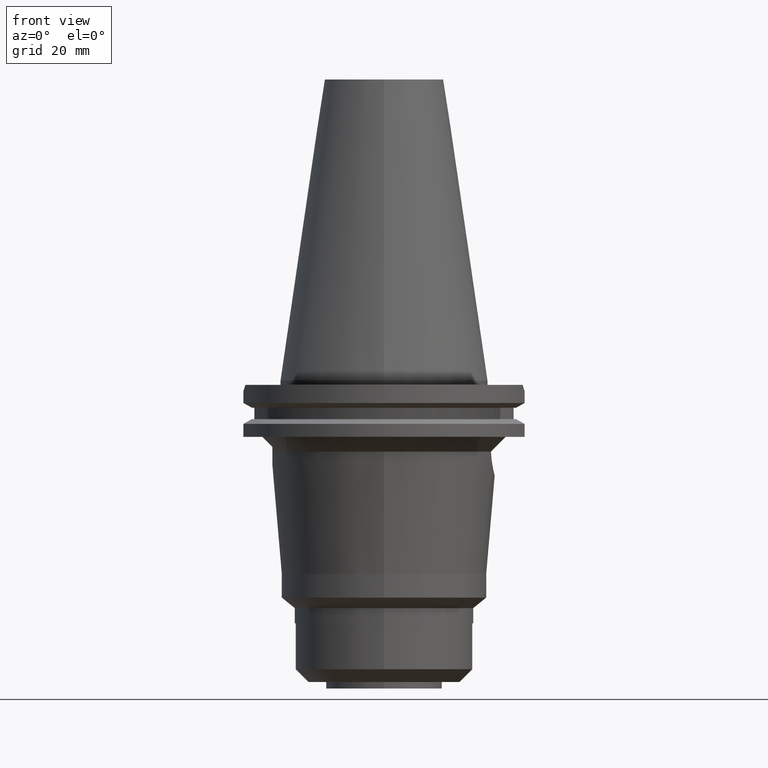
[diagram: clean part render]
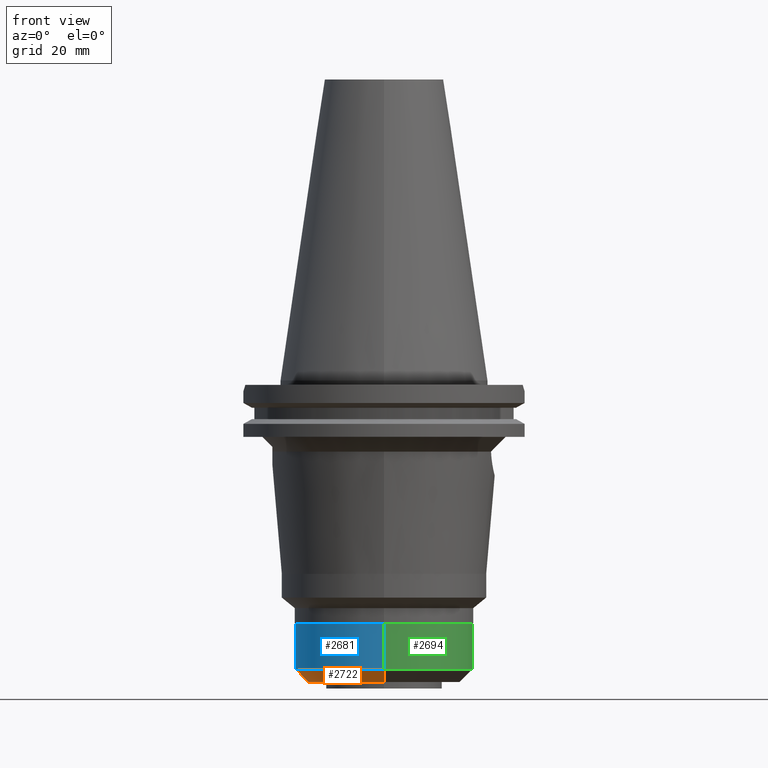
[diagram: same view with three faces highlighted in distinct colors, each labeled with its STEP entity id]
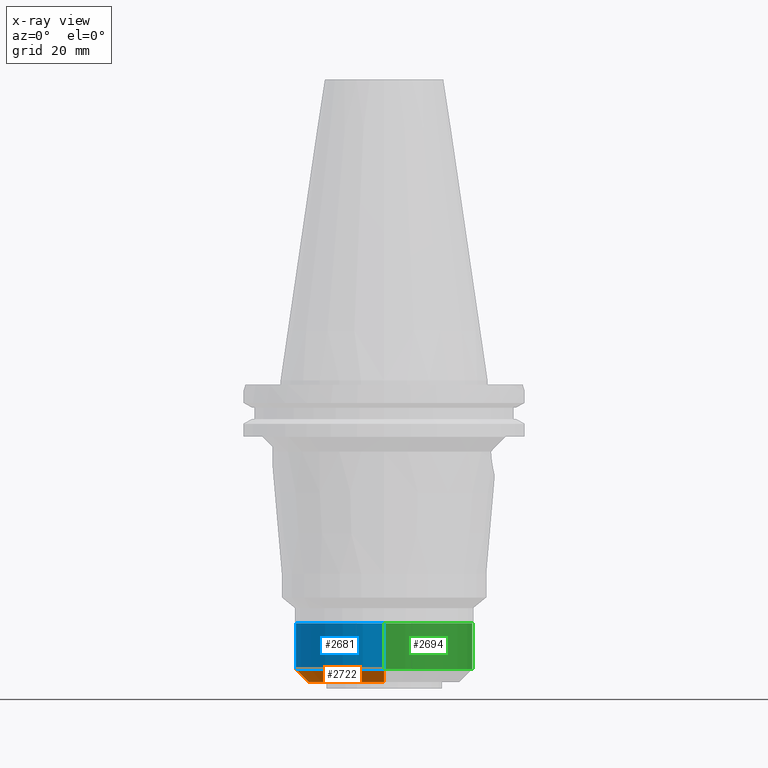
[diagram: x-ray of the same camera — body ghosted, the three highlighted faces saturated]
A machine part, front view with three faces highlighted in distinct colors.
The next image is the same camera in x-ray (body ghosted, the three faces saturated) — at least one of them is partly hidden behind the body in this view.
Their STEP definitions:

[orange] entity #2722 — the highlighted conical surface has half-angle 45 deg.
#1235=DIRECTION('',(0.E0,-7.071067811866E-1,-7.071067811865E-1));
#1236=VECTOR('',#1235,6.081118318204E0);
#1237=CARTESIAN_POINT('',(0.E0,3.E1,-9.75E1));
#1238=LINE('',#1237,#1236);
#1250=CARTESIAN_POINT('',(0.E0,-1.220360535350E-14,-9.75E1));
#1251=DIRECTION('',(0.E0,0.E0,1.E0));
#1252=DIRECTION('',(0.E0,1.E0,0.E0));
#1253=AXIS2_PLACEMENT_3D('',#1250,#1251,#1252);
#1258=DIRECTION('',(0.E0,7.071067811866E-1,-7.071067811865E-1));
#1259=VECTOR('',#1258,6.081118318204E0);
#1260=CARTESIAN_POINT('',(0.E0,-3.E1,-9.75E1));
#1261=LINE('',#1260,#1259);
#1273=CARTESIAN_POINT('',(0.E0,-1.220360535350E-14,-1.018E2));
#1274=DIRECTION('',(0.E0,0.E0,1.E0));
#1275=DIRECTION('',(0.E0,1.E0,0.E0));
#1276=AXIS2_PLACEMENT_3D('',#1273,#1274,#1275);
#1627=CARTESIAN_POINT('',(0.E0,-2.57E1,-1.018E2));
#1628=CARTESIAN_POINT('',(0.E0,2.57E1,-1.018E2));
#1629=VERTEX_POINT('',#1627);
#1630=VERTEX_POINT('',#1628);
#1631=CARTESIAN_POINT('',(0.E0,3.E1,-9.75E1));
#1632=VERTEX_POINT('',#1631);
#1633=CARTESIAN_POINT('',(0.E0,-3.E1,-9.75E1));
#1634=VERTEX_POINT('',#1633);
#2710=CARTESIAN_POINT('',(0.E0,-1.220360535350E-14,-9.965E1));
#2711=DIRECTION('',(0.E0,0.E0,1.E0));
#2712=DIRECTION('',(0.E0,1.E0,0.E0));
#2713=AXIS2_PLACEMENT_3D('',#2710,#2711,#2712);
#2714=CONICAL_SURFACE('',#2713,2.785E1,4.5E1);
#2715=ORIENTED_EDGE('',*,*,#2700,.F.);
#2716=ORIENTED_EDGE('',*,*,#2677,.T.);
#2717=ORIENTED_EDGE('',*,*,#2704,.T.);
#2719=ORIENTED_EDGE('',*,*,#2718,.F.);
#2720=EDGE_LOOP('',(#2715,#2716,#2717,#2719));
#2721=FACE_OUTER_BOUND('',#2720,.F.);
#1254=CIRCLE('',#1253,3.E1);
#1277=CIRCLE('',#1276,2.57E1);
#2677=EDGE_CURVE('',#1632,#1634,#1254,.T.);
#2700=EDGE_CURVE('',#1632,#1630,#1238,.T.);
#2704=EDGE_CURVE('',#1634,#1629,#1261,.T.);
#2718=EDGE_CURVE('',#1630,#1629,#1277,.T.);
#2722=ADVANCED_FACE('',(#2721),#2714,.T.);

[blue] entity #2681 — the highlighted cylindrical surface (partial cylindrical patch) has radius 30 mm, axis along (0, 0, -1).
#1205=CARTESIAN_POINT('',(0.E0,1.370134838886E-14,-8.2E1));
#1206=DIRECTION('',(0.E0,0.E0,-1.E0));
#1207=DIRECTION('',(0.E0,-1.E0,0.E0));
#1208=AXIS2_PLACEMENT_3D('',#1205,#1206,#1207);
#1221=DIRECTION('',(0.E0,0.E0,-1.E0));
#1222=VECTOR('',#1221,1.55E1);
#1223=CARTESIAN_POINT('',(0.E0,-3.E1,-8.2E1));
#1224=LINE('',#1223,#1222);
#1228=DIRECTION('',(0.E0,0.E0,-1.E0));
#1229=VECTOR('',#1228,1.55E1);
#1230=CARTESIAN_POINT('',(0.E0,3.E1,-8.2E1));
#1231=LINE('',#1230,#1229);
#1250=CARTESIAN_POINT('',(0.E0,-1.220360535350E-14,-9.75E1));
#1251=DIRECTION('',(0.E0,0.E0,1.E0));
#1252=DIRECTION('',(0.E0,1.E0,0.E0));
#1253=AXIS2_PLACEMENT_3D('',#1250,#1251,#1252);
#1631=CARTESIAN_POINT('',(0.E0,3.E1,-9.75E1));
#1632=VERTEX_POINT('',#1631);
#1633=CARTESIAN_POINT('',(0.E0,-3.E1,-9.75E1));
#1634=VERTEX_POINT('',#1633);
#1635=CARTESIAN_POINT('',(0.E0,3.E1,-8.2E1));
#1636=VERTEX_POINT('',#1635);
#1637=CARTESIAN_POINT('',(0.E0,-3.E1,-8.2E1));
#1638=VERTEX_POINT('',#1637);
#2667=CARTESIAN_POINT('',(0.E0,1.370134838886E-14,1.1188E2));
#2668=DIRECTION('',(0.E0,0.E0,-1.E0));
#2669=DIRECTION('',(0.E0,-1.E0,0.E0));
#2670=AXIS2_PLACEMENT_3D('',#2667,#2668,#2669);
#2671=CYLINDRICAL_SURFACE('',#2670,3.E1);
#2673=ORIENTED_EDGE('',*,*,#2672,.F.);
#2674=ORIENTED_EDGE('',*,*,#2660,.F.);
#2676=ORIENTED_EDGE('',*,*,#2675,.T.);
#2678=ORIENTED_EDGE('',*,*,#2677,.F.);
#2679=EDGE_LOOP('',(#2673,#2674,#2676,#2678));
#2680=FACE_OUTER_BOUND('',#2679,.F.);
#1209=CIRCLE('',#1208,3.E1);
#1254=CIRCLE('',#1253,3.E1);
#2660=EDGE_CURVE('',#1638,#1636,#1209,.T.);
#2672=EDGE_CURVE('',#1636,#1632,#1231,.T.);
#2675=EDGE_CURVE('',#1638,#1634,#1224,.T.);
#2677=EDGE_CURVE('',#1632,#1634,#1254,.T.);
#2681=ADVANCED_FACE('',(#2680),#2671,.T.);

[green] entity #2694 — the highlighted cylindrical surface (partial cylindrical patch) has radius 30 mm, axis along (0, 0, -1).
#1213=CARTESIAN_POINT('',(0.E0,1.370134838886E-14,-8.2E1));
#1214=DIRECTION('',(0.E0,0.E0,-1.E0));
#1215=DIRECTION('',(0.E0,1.E0,0.E0));
#1216=AXIS2_PLACEMENT_3D('',#1213,#1214,#1215);
#1221=DIRECTION('',(0.E0,0.E0,-1.E0));
#1222=VECTOR('',#1221,1.55E1);
#1223=CARTESIAN_POINT('',(0.E0,-3.E1,-8.2E1));
#1224=LINE('',#1223,#1222);
#1228=DIRECTION('',(0.E0,0.E0,-1.E0));
#1229=VECTOR('',#1228,1.55E1);
#1230=CARTESIAN_POINT('',(0.E0,3.E1,-8.2E1));
#1231=LINE('',#1230,#1229);
#1242=CARTESIAN_POINT('',(0.E0,-1.220360535350E-14,-9.75E1));
#1243=DIRECTION('',(0.E0,0.E0,1.E0));
#1244=DIRECTION('',(0.E0,-1.E0,0.E0));
#1245=AXIS2_PLACEMENT_3D('',#1242,#1243,#1244);
#1631=CARTESIAN_POINT('',(0.E0,3.E1,-9.75E1));
#1632=VERTEX_POINT('',#1631);
#1633=CARTESIAN_POINT('',(0.E0,-3.E1,-9.75E1));
#1634=VERTEX_POINT('',#1633);
#1635=CARTESIAN_POINT('',(0.E0,3.E1,-8.2E1));
#1636=VERTEX_POINT('',#1635);
#1637=CARTESIAN_POINT('',(0.E0,-3.E1,-8.2E1));
#1638=VERTEX_POINT('',#1637);
#2682=CARTESIAN_POINT('',(0.E0,1.370134838886E-14,1.1188E2));
#2683=DIRECTION('',(0.E0,0.E0,-1.E0));
#2684=DIRECTION('',(0.E0,-1.E0,0.E0));
#2685=AXIS2_PLACEMENT_3D('',#2682,#2683,#2684);
#2686=CYLINDRICAL_SURFACE('',#2685,3.E1);
#2687=ORIENTED_EDGE('',*,*,#2672,.T.);
#2689=ORIENTED_EDGE('',*,*,#2688,.F.);
#2690=ORIENTED_EDGE('',*,*,#2675,.F.);
#2691=ORIENTED_EDGE('',*,*,#2662,.F.);
#2692=EDGE_LOOP('',(#2687,#2689,#2690,#2691));
#2693=FACE_OUTER_BOUND('',#2692,.F.);
#1217=CIRCLE('',#1216,3.E1);
#1246=CIRCLE('',#1245,3.E1);
#2662=EDGE_CURVE('',#1636,#1638,#1217,.T.);
#2672=EDGE_CURVE('',#1636,#1632,#1231,.T.);
#2675=EDGE_CURVE('',#1638,#1634,#1224,.T.);
#2688=EDGE_CURVE('',#1634,#1632,#1246,.T.);
#2694=ADVANCED_FACE('',(#2693),#2686,.T.);